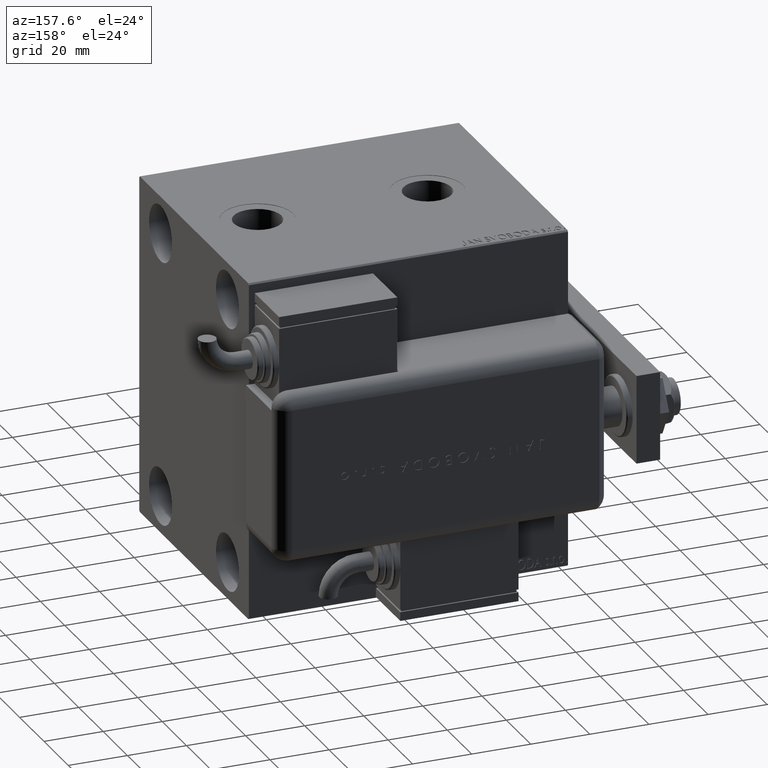
[diagram: clean part render]
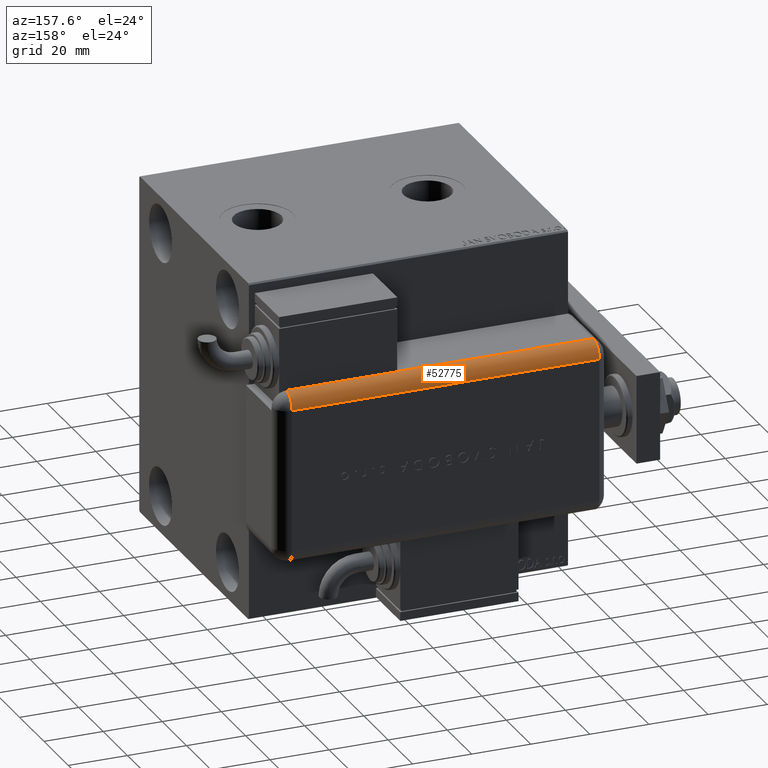
[diagram: same view with one face highlighted and labeled with its STEP entity id]
A machine part, auxiliary view. The second image highlights one B-rep face of the part: STEP entity #52775.
In plain terms, the highlighted cylindrical surface (edge-blend (fillet) strip) has radius 5 mm, axis along (1, -0, -0).
Its self-contained STEP definition (entity closure, byte-faithful):
#318 = DIRECTION ( 'NONE',  ( -1.000000000000000000, 0.000000000000000000, 0.000000000000000000 ) ) ;
#1083 = VECTOR ( 'NONE', #58679, 1000.000000000000000 ) ;
#1508 = EDGE_CURVE ( 'NONE', #21300, #25632, #40229, .T. ) ;
#2071 = ORIENTED_EDGE ( 'NONE', *, *, #1508, .F. ) ;
#3987 = CARTESIAN_POINT ( 'NONE',  ( 23.99999999999999289, 25.79999999999998295, 109.0000000000000000 ) ) ;
#4958 = CIRCLE ( 'NONE', #43676, 5.000000000000000888 ) ;
#5187 = ORIENTED_EDGE ( 'NONE', *, *, #16766, .F. ) ;
#7144 = EDGE_CURVE ( 'NONE', #26625, #53286, #53652, .T. ) ;
#9685 = CARTESIAN_POINT ( 'NONE',  ( 23.99999999999999289, 20.79999999999998295, 109.0000000000000000 ) ) ;
#9787 = VECTOR ( 'NONE', #15035, 1000.000000000000000 ) ;
#14172 = AXIS2_PLACEMENT_3D ( 'NONE', #9685, #14825, #318 ) ;
#14825 = DIRECTION ( 'NONE',  ( 0.000000000000000000, 0.000000000000000000, -1.000000000000000000 ) ) ;
#15035 = DIRECTION ( 'NONE',  ( -0.000000000000000000, -0.000000000000000000, 1.000000000000000000 ) ) ;
#15236 = CARTESIAN_POINT ( 'NONE',  ( 23.99999999999999289, 20.79999999999998295, 43.00000000000000000 ) ) ;
#16766 = EDGE_CURVE ( 'NONE', #25632, #52404, #31154, .T. ) ;
#19443 = ORIENTED_EDGE ( 'NONE', *, *, #41059, .F. ) ;
#21124 = CARTESIAN_POINT ( 'NONE',  ( 28.99599839871871154, 21.00000000000000000, 5.000000000000004441 ) ) ;
#21300 = VERTEX_POINT ( 'NONE', #25531 ) ;
#21549 = VECTOR ( 'NONE', #49700, 1000.000000000000000 ) ;
#21906 = CARTESIAN_POINT ( 'NONE',  ( 23.99999999999999289, 20.79999999999998295, 5.000000000000004441 ) ) ;
#21954 = EDGE_CURVE ( 'NONE', #52404, #26625, #41357, .T. ) ;
#22051 = CARTESIAN_POINT ( 'NONE',  ( 28.99999999999999645, 20.79999999999998295, 109.0000000000000000 ) ) ;
#25033 = LINE ( 'NONE', #51677, #9787 ) ;
#25531 = CARTESIAN_POINT ( 'NONE',  ( 28.99599839871871154, 20.99999999999999289, 43.00000000000000000 ) ) ;
#25632 = VERTEX_POINT ( 'NONE', #48741 ) ;
#26625 = VERTEX_POINT ( 'NONE', #40581 ) ;
#27575 = CYLINDRICAL_SURFACE ( 'NONE', #14172, 5.000000000000000888 ) ;
#30773 = EDGE_LOOP ( 'NONE', ( #2071, #19443, #41500, #45595, #46420, #5187 ) ) ;
#31025 = DIRECTION ( 'NONE',  ( -0.000000000000000000, -0.000000000000000000, 1.000000000000000000 ) ) ;
#31154 = LINE ( 'NONE', #22051, #1083 ) ;
#32595 = CARTESIAN_POINT ( 'NONE',  ( 23.99999999999999289, 20.79999999999998295, 109.0000000000000000 ) ) ;
#34443 = AXIS2_PLACEMENT_3D ( 'NONE', #15236, #39486, #57917 ) ;
#36677 = EDGE_CURVE ( 'NONE', #42292, #53286, #4958, .T. ) ;
#37434 = DIRECTION ( 'NONE',  ( -0.000000000000000000, -0.000000000000000000, 1.000000000000000000 ) ) ;
#39486 = DIRECTION ( 'NONE',  ( -0.000000000000000000, 0.000000000000000000, -1.000000000000000000 ) ) ;
#40229 = CIRCLE ( 'NONE', #34443, 5.000000000000000888 ) ;
#40581 = CARTESIAN_POINT ( 'NONE',  ( 23.99999999999999289, 25.79999999999998295, 109.0000000000000000 ) ) ;
#41059 = EDGE_CURVE ( 'NONE', #42292, #21300, #25033, .T. ) ;
#41357 = CIRCLE ( 'NONE', #50991, 5.000000000000000888 ) ;
#41500 = ORIENTED_EDGE ( 'NONE', *, *, #36677, .T. ) ;
#41599 = CARTESIAN_POINT ( 'NONE',  ( 23.99999999999999289, 25.79999999999998295, 5.000000000000004441 ) ) ;
#41994 = DIRECTION ( 'NONE',  ( -1.000000000000000000, 0.000000000000000000, 0.000000000000000000 ) ) ;
#42292 = VERTEX_POINT ( 'NONE', #21124 ) ;
#43676 = AXIS2_PLACEMENT_3D ( 'NONE', #21906, #31025, #49480 ) ;
#45595 = ORIENTED_EDGE ( 'NONE', *, *, #7144, .F. ) ;
#46420 = ORIENTED_EDGE ( 'NONE', *, *, #21954, .F. ) ;
#48741 = CARTESIAN_POINT ( 'NONE',  ( 28.99999999999999645, 20.79999999999998295, 43.00000000000000000 ) ) ;
#49480 = DIRECTION ( 'NONE',  ( -1.000000000000000000, 0.000000000000000000, 0.000000000000000000 ) ) ;
#49700 = DIRECTION ( 'NONE',  ( 0.000000000000000000, 0.000000000000000000, -1.000000000000000000 ) ) ;
#50564 = FACE_OUTER_BOUND ( 'NONE', #30773, .T. ) ;
#50991 = AXIS2_PLACEMENT_3D ( 'NONE', #32595, #37434, #41994 ) ;
#51677 = CARTESIAN_POINT ( 'NONE',  ( 28.99599839871871154, 20.99999999999998224, 109.0000000000000000 ) ) ;
#52404 = VERTEX_POINT ( 'NONE', #59720 ) ;
#52775 = ADVANCED_FACE ( 'NONE', ( #50564 ), #27575, .T. ) ;
#53286 = VERTEX_POINT ( 'NONE', #41599 ) ;
#53652 = LINE ( 'NONE', #3987, #21549 ) ;
#57917 = DIRECTION ( 'NONE',  ( 1.000000000000000000, -6.383782391594648845E-14, 0.000000000000000000 ) ) ;
#58679 = DIRECTION ( 'NONE',  ( -0.000000000000000000, -0.000000000000000000, 1.000000000000000000 ) ) ;
#59720 = CARTESIAN_POINT ( 'NONE',  ( 28.99999999999999645, 20.79999999999998295, 109.0000000000000000 ) ) ;